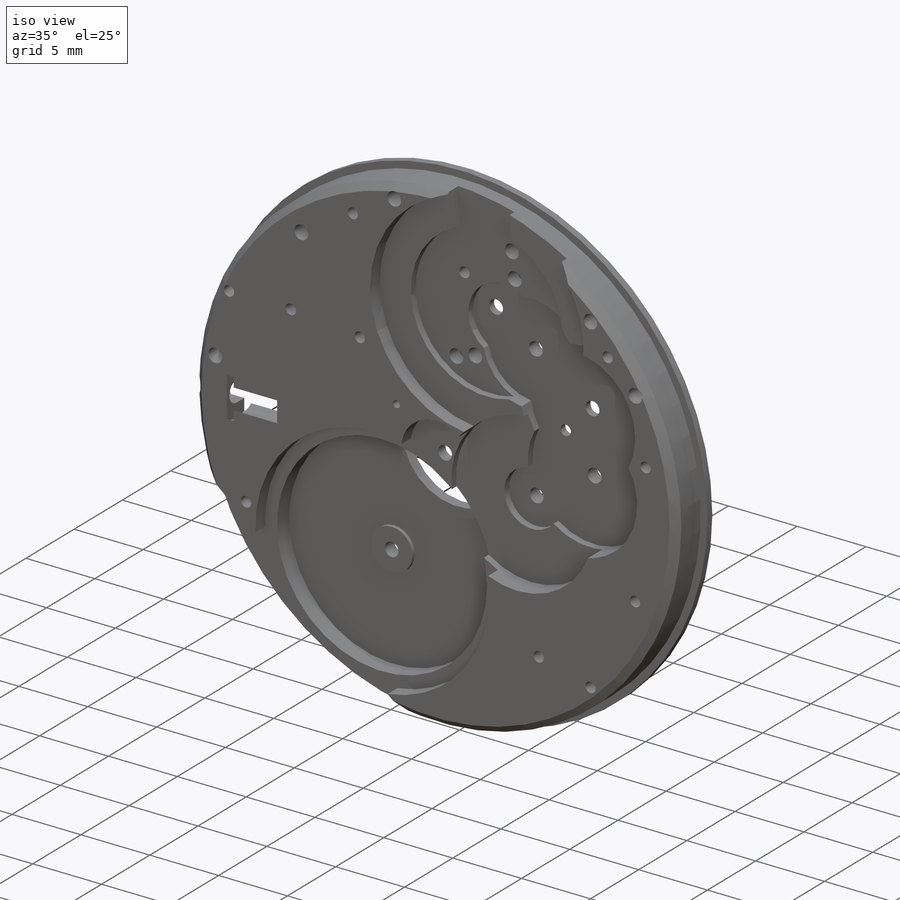
[diagram: iso view]
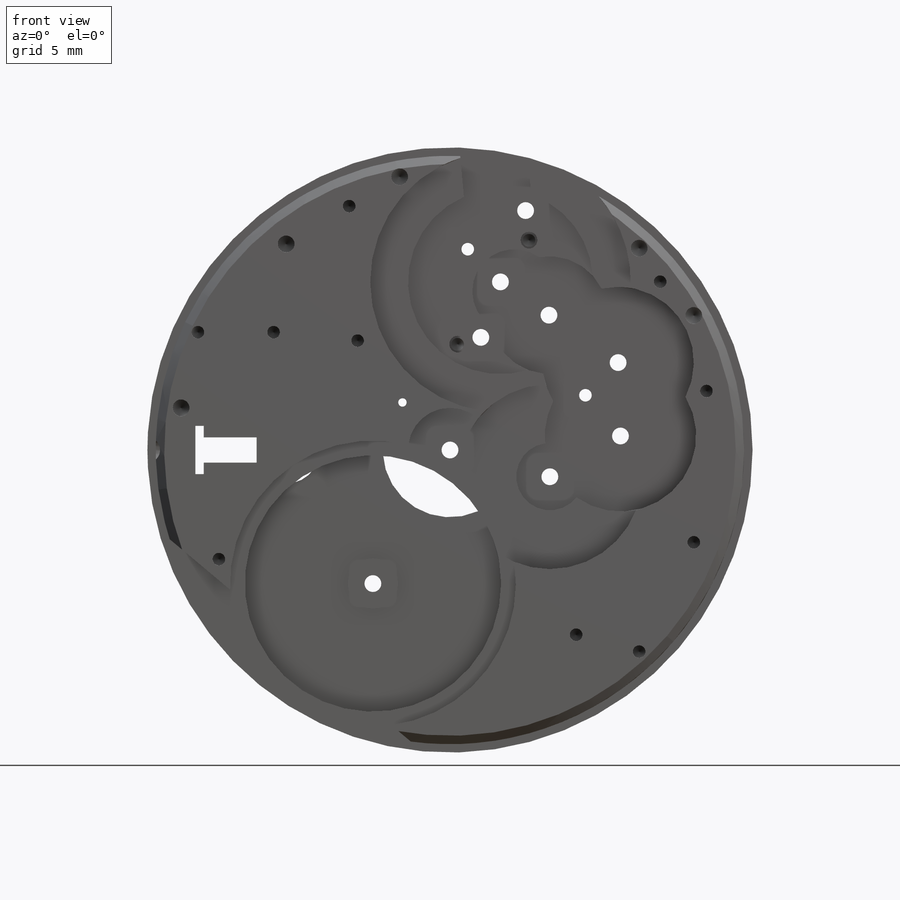
[diagram: front view]
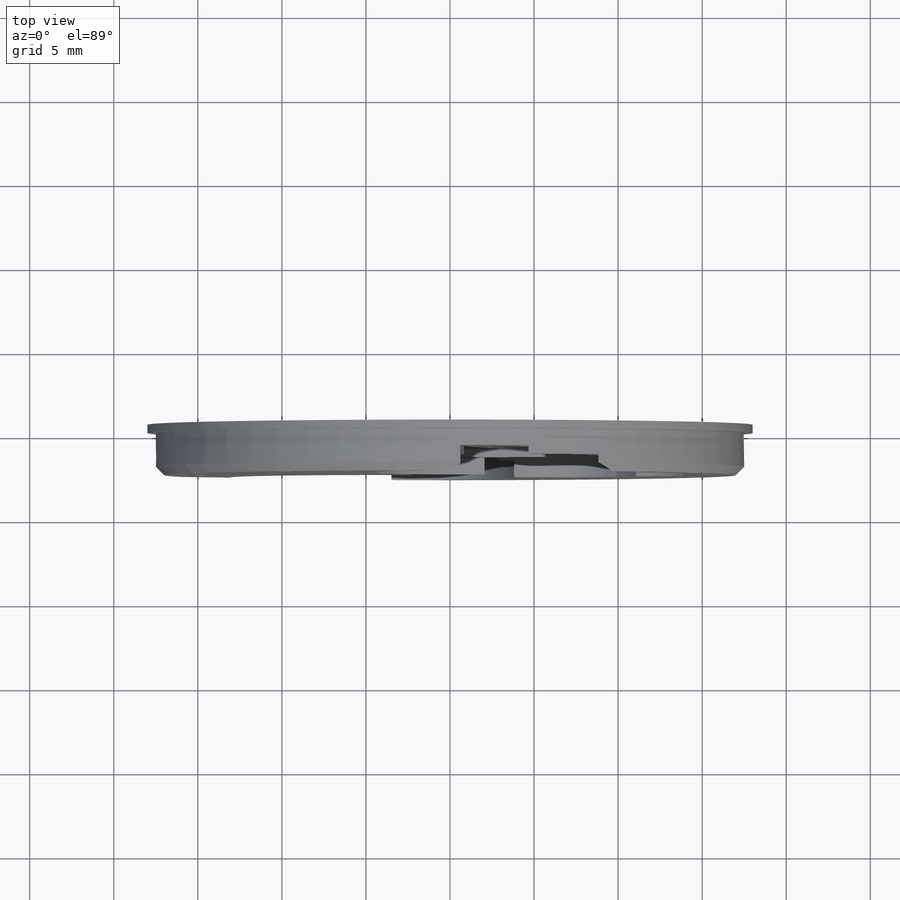
[diagram: top view]
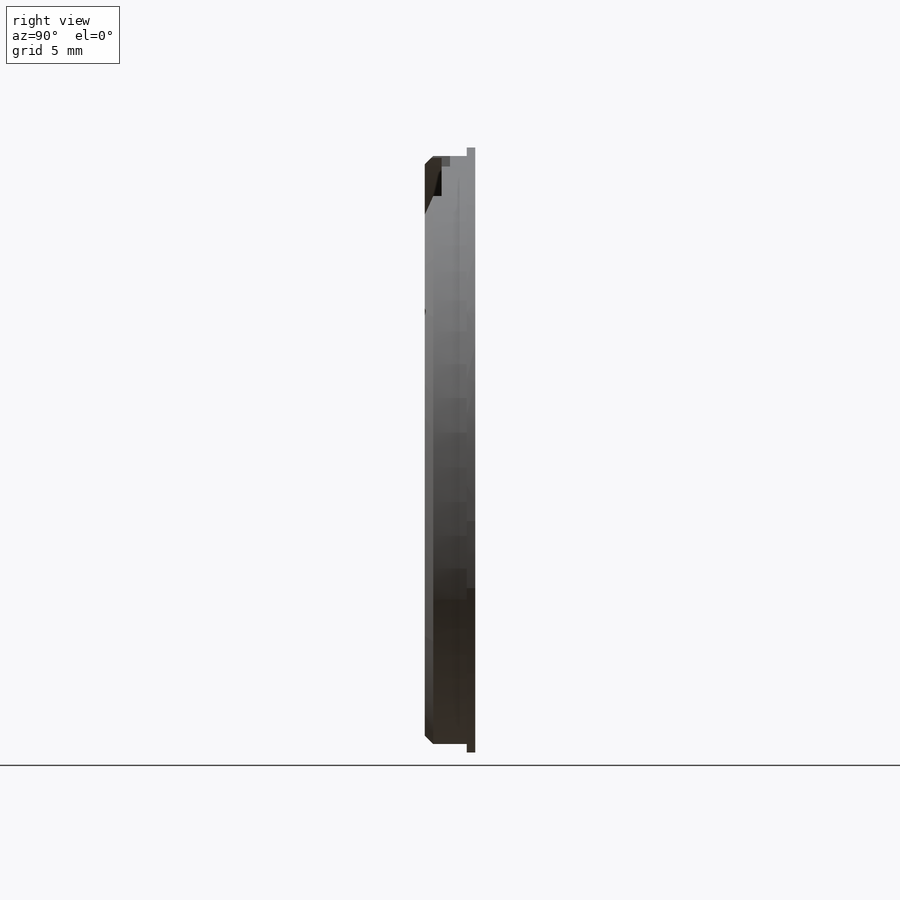
[diagram: right view]
SOLIDWORKS PART (.sldprt)
format: sldprt  version: not decoded by parser v0  size: 1,274,880 bytes
history: native  units: mm
features: sketch x42, cut_extrude x18, thread x14, hole x9, extrude x6, plane x4, chamfer x2, material x1 (+8 scaffold rows collapsed)
feature tree (104):
  scaffold x8  (default folders/planes/origin — collapsed)
  material  "Material <sin especificar>"
  plane  "Alzado"
  plane  "Planta"
  plane  "Vista lateral"
  sketch  "Croquis1"  dims[D1=35.0mm]
  extrude  "Saliente-Extruir1"  Depth=2.5mm
  sketch  "Croquis2"  dims[D1=36.0mm]
  extrude  "Saliente-Extruir2"  Depth=0.5mm
  chamfer  "Chaflán1"  Distance=0.5mm Angle=45deg
  sketch  "Croquis4"  dims[c1.D1=15.25mm c1.D2=9.175mm c1.D3=9.175mm c2.D3=30.0deg]
  cut_extrude  "Cortar-Extruir1"  Depth=2.25mm
  sketch  "Croquis5"  dims[c1.D1=17.0mm c1.D4=5.0mm c1.D5=15.5mm c1.D8=8.75mm c1.D2=135.0deg c2.D2=~23.438852mm c3.D2=40.0deg c3.D3=23.0mm c3.D6=3.0mm c3.D7=10.0mm]
  cut_extrude  "Cortar-Extruir2"  Depth=1mm
  sketch  "Croquis7"  dims[D1=1.0mm]
  cut_extrude  "Cortar-Extruir3"  [1 undecoded]
  sketch  "Croquis8"  dims[c1.D3=11.0mm c1.D4=11.0mm c1.D1=~3.382087mm c2.D1=15.0deg c2.D2=6.15mm]
  sketch  "Croquis9"  dims[D1=3.0mm]
  extrude  "Saliente-Extruir3"  Depth=0.25mm
  sketch  "Croquis10"  dims[D1=1.0mm]
  cut_extrude  "Cortar-Extruir4"  [1 undecoded]
  cut_extrude  "Cortar-Extruir5"  Depth=0.5mm
  sketch  "Croquis12"  dims[c1.D1=4.0mm c1.D4=9.0mm c1.D5=1.0mm c1.D6=1.0mm c1.D7=9.0mm c1.D10=5.0mm c1.D11=7.0mm c1.D12=4.0mm c1.D2=4.85mm c1.D3=4.85mm c2.D3=30.0deg c2.D5=5.2mm c2.D6=10.0mm c2.D8=1.0mm c2.D9=3.5mm c2.D12=~8.487638mm]
  cut_extrude  "Cortar-Extruir6"  Depth=0.5mm
  sketch  "Croquis13"  dims[c1.D1=~9.189814mm c2.D1=~1.521203deg c3.D1=4.0mm c3.D2=~4.722928mm c4.D2=95.0deg c4.D3=9.0mm c4.D4=7.0mm]
  cut_extrude  "Cortar-Extruir7"  Depth=0.5mm
  sketch  "Croquis14"  dims[D1=1.0mm]
  cut_extrude  "Cortar-Extruir8"  [1 undecoded]
  hole  "Diámetro de taladro Ø1.0 (1)1"  Depth=1.25mm  [1 undecoded]
  sketch  "Croquis16"  dims[c1.D1=~14.626586mm c1.D2=3.0mm c2.D1=9.75mm c2.D3=16.25mm c2.D4=12.25mm c2.D5=2.5mm c2.D6=16.0mm c2.D7=12.0mm c2.D8=11.25mm c2.D9=8.0mm c2.D10=14.5mm]
  sketch  "Croquis15"  dims[hole-wizard template sketch: 46 standard entries collapsed; hole parameters kept: c15.Diámetro de taladro=1.0mm c15.Profundidad de taladro=1.25mm c15.D3=~14.816244mm c15.Ángulo de perforador=118.0deg]
  hole  "Taladro roscado M1x0.251"  Depth=1.5mm  [1 undecoded]
  sketch  "Croquis18"  dims[D1=7.5mm D2=11.0mm D3=13.75mm D4=6.5mm D5=7.0mm D6=10.5mm D7=14.5mm D8=5.5mm D9=15.25mm D10=3.5mm D11=6.5mm D12=5.5mm D13=6.0mm D14=14.5mm D15=10.0mm D16=12.5mm D17=15.0mm D18=7.0mm D19=12.0mm D20=11.25mm]
  sketch  "Croquis17"  dims[hole-wizard template sketch: 46 standard entries collapsed; hole parameters kept: c15.Diámetro de perforador para roscar=0.75mm c15.Profundidad de perforador para roscar=1.5mm c15.D3=~14.816244mm c15.Ángulo de perforador=118.0deg]
  thread  "Rosca de taladro1"  Diameter=1.25mm  [1 undecoded]
  thread  "Rosca de taladro2"  Diameter=1.25mm  [1 undecoded]
  thread  "Rosca de taladro3"  Diameter=1.25mm  [1 undecoded]
  thread  "Rosca de taladro4"  Diameter=1.25mm  [1 undecoded]
  thread  "Rosca de taladro5"  Diameter=1.25mm  [1 undecoded]
  thread  "Rosca de taladro6"  Diameter=1.25mm  [1 undecoded]
  thread  "Rosca de taladro7"  Diameter=1.25mm  [1 undecoded]
  thread  "Rosca de taladro8"  Diameter=1.25mm  [1 undecoded]
  sketch  "Croquis19"  dims[c1.D2=1.0mm c1.D3=1.0mm c1.D1=8.5mm c1.D4=~6.263284mm c2.D4=45.0deg c2.D5=4.25mm c3.D4=8.5mm c4.D4=90.0deg c4.D1=~2.403496mm c5.D1=120.0deg c5.D4=3.5mm c5.D5=4.5mm c6.D1=~4.174198mm c7.D1=30.0deg c8.D1=~3.489501mm c9.D1=75.0deg]
  cut_extrude  "Cortar-Extruir9"  [1 undecoded]
  sketch  "Croquis20"  dims[c1.D1=2.5mm c1.D2=6.5mm c1.D3=~3.008651mm c2.D3=45.0deg c2.D4=4.0mm]
  cut_extrude  "Cortar-Extruir10"  Depth=1.25mm
  sketch  "Croquis21"  dims[D1=8.0mm]
  cut_extrude  "Cortar-Extruir11"  Depth=0.75mm
  sketch  "Croquis22"  dims[D1=0.5mm]
  cut_extrude  "Cortar-Extruir12"  [1 undecoded]
  hole  "Taladro roscado M1x0.252"  Depth=1.5mm  [1 undecoded]
  sketch  "Croquis24"  dims[D1=3.5mm D2=15.25mm D3=15.0mm D4=7.0mm]
  sketch  "Croquis23"  dims[hole-wizard template sketch: 46 standard entries collapsed; hole parameters kept: c15.Diámetro de perforador para roscar=0.75mm c15.Profundidad de perforador para roscar=1.5mm c15.D3=~14.816244mm c15.Ángulo de perforador=118.0deg]
  thread  "Rosca de taladro9"  Diameter=1.25mm  [1 undecoded]
  thread  "Rosca de taladro10"  Diameter=1.25mm  [1 undecoded]
  hole  "Diámetro de taladro Ø1.0 (1)2"  Depth=2mm  [1 undecoded]
  sketch  "Croquis27"  dims[c1.D1=28.0mm c1.D2=28.0mm c2.D2=45.0deg]
  sketch  "Croquis26"  dims[hole-wizard template sketch: 46 standard entries collapsed; hole parameters kept: c15.Diámetro de taladro=1.0mm c15.Profundidad de taladro=2.0mm c15.D3=~14.816244mm c15.Ángulo de perforador=118.0deg]
  chamfer  "Chaflán2"  Distance=0.25mm Angle=45deg
  hole  "Taladro roscado M1x0.253"  Depth=1.25mm  [1 undecoded]
  sketch  "Croquis29"  dims[D1=4.5mm D2=3.0mm]
  sketch  "Croquis28"  dims[hole-wizard template sketch: 28 standard entries collapsed; hole parameters kept: c8.Diámetro de perforador para roscar=0.75mm c8.Profundidad de perforador para roscar=1.25mm c8.Diámetro mayor de rosca=1.0mm c8.Profundidad de rosca=1.0mm c8.D5=~14.816244mm c8.Ángulo de perforador=118.0deg]
  plane  "Plano1"
  sketch  "Croquis30"  dims[D2=1.5mm D1=2.0mm]
  cut_extrude  "Cortar-Extruir13"  Depth=2.35mm
  sketch  "Croquis31"  dims[D1=3.5mm]
  cut_extrude  "Cortar-Extruir14"  Depth=0.5mm
  sketch  "Croquis32"  dims[c1.D1=5.75mm c1.D3=3.0mm c1.D4=2.5mm c1.D5=7.0mm c1.D8=7.0mm c1.D9=6.0mm c1.D14=8.0mm c1.D17=5.0mm c1.D24=2.0mm c2.D8=4.75mm c2.D3=1.5mm c2.D4=1.25mm c2.D25=3.5mm c2.D17=2.0mm c2.D10=2.0mm c3.D3=1.25mm c3.D4=1.25mm c4.D3=1.5mm c4.D4=1.5mm c4.D5=4.0mm c4.D11=3.0mm c4.D2=3.5mm c4.D6=2.5mm c4.D7=9.5mm c4.D10=1.0mm c5.D11=10.5mm c5.D12=1.5mm c5.D13=11.5mm c5.D15=11.5mm c5.D16=4.0mm c5.D18=7.5mm c5.D19=2.5mm c5.D20=2.5mm c5.D21=6.0mm c5.D22=~1.78239mm c6.D22=30.0deg c6.D23=~1.898606mm c7.D23=60.0deg c7.D19=3.5mm c7.D6=7.6mm c7.D7=9.75mm c7.D10=5.5mm c7.D11=1.0mm c7.D12=5.5mm c7.D13=1.25mm c7.D15=3.0mm c7.D16=3.75mm c7.D18=1.5mm c8.D19=1.0mm c8.D20=4.5mm c8.D21=1.5mm c8.D12=3.5mm c8.D15=4.5mm c8.D17=3.5mm c8.D26=~3.709447mm c8.D3=7.6mm c8.D4=5.75mm c8.D11=2.25mm c9.D3=4.25mm c9.D4=2.5mm c9.D17=4.5mm c9.D18=1.5mm c9.D19=1.75mm c9.D20=~0.645691mm c10.D20=135.0deg c10.D5=0.25mm c10.D12=~47.489553deg]
  cut_extrude  "Cortar-Extruir15"  Depth=1.2mm
  sketch  "Croquis33"  dims[D1=2.5mm]
  cut_extrude  "Cortar-Extruir16"  Depth=3.15mm
  hole  "Diámetro de taladro Ø0.2 (0.2)1"  Depth=2mm  [1 undecoded]
  sketch  "Croquis37"
  sketch  "Croquis36"  dims[hole-wizard template sketch: 46 standard entries collapsed; hole parameters kept: c15.Diámetro de taladro=0.2mm c15.Profundidad de taladro=2.0mm c15.D3=~14.816244mm c15.Ángulo de perforador=118.0deg]
  sketch  "Croquis38"  dims[D1=1.5mm D2=1.5mm]
  extrude  "Saliente-Extruir4"  Depth=0.2mm
  sketch  "Croquis41"  dims[D1=1.5mm]
  cut_extrude  "Cortar-Extruir17"  [1 undecoded]
  sketch  "Croquis42"  dims[D1=5.0mm D2=10.5mm]
  extrude  "Saliente-Extruir5"  Depth=0.2mm
  hole  "Taladro roscado M1x0.255"  Depth=1mm  [1 undecoded]
  sketch  "Croquis44"
  sketch  "Croquis43"  dims[hole-wizard template sketch: 46 standard entries collapsed; hole parameters kept: c15.Diámetro de perforador para roscar=0.75mm c15.Profundidad de perforador para roscar=1.0mm c15.D3=~14.816244mm c15.Ángulo de perforador=118.0deg]
  thread  "Rosca de taladro12"  Diameter=0.75mm  [1 undecoded]
  thread  "Rosca de taladro13"  Diameter=0.75mm  [1 undecoded]
  hole  "Diámetro de taladro Ø0.5 (0.5)1"  Depth=1mm  [1 undecoded]
  sketch  "Croquis46"  dims[D1=0.25mm D2=1.5mm]
  sketch  "Croquis45"  dims[hole-wizard template sketch: 46 standard entries collapsed; hole parameters kept: c15.Diámetro de taladro=0.5mm c15.Profundidad de taladro=1.0mm c15.D3=~14.816244mm c15.Ángulo de perforador=118.0deg]
  sketch  "Croquis47"  dims[c1.D1=0.5mm c1.D2=3.5mm c1.D3=4.75mm c1.D4=1.5mm c2.D2=2.25mm c2.D3=1.25mm c3.D2=2.25mm c3.D3=3.75mm]
  extrude  "Saliente-Extruir6"  Depth=0.5mm
  sketch  "Croquis48"  dims[c1.D1=5.0mm c1.D2=5.0mm c1.D3=1.0mm c1.D4=1.0mm c1.D5=1.0mm c1.D6=1.0mm c2.D3=1.0mm c2.D4=1.0mm c3.D3=1.0mm c3.D4=1.0mm c3.D5=1.0mm c3.D6=1.0mm c4.D3=1.0mm c4.D4=1.0mm]
  cut_extrude  "Cortar-Extruir18"  Depth=0.5mm
  hole  "Taladro roscado M1x0.256"  Depth=2.52486mm  [1 undecoded]
  sketch  "Croquis50"  dims[c1.D1=~2.828427mm c2.D1=45.0deg c3.D1=2.75mm c3.D2=~0.856159mm c4.D2=45.0deg c4.D3=2.75mm c4.D4=~0.479504mm c5.D4=45.0deg]
  sketch  "Croquis49"  dims[hole-wizard template sketch: 60 standard entries collapsed; hole parameters kept: c18.Profundidad de perforador para roscar hasta el siguiente=~2.52486mm]
  thread  "Rosca de taladro14"  Diameter=1mm  [1 undecoded]
  thread  "Rosca de taladro15"  Diameter=1mm  [1 undecoded]
decode coverage: 83 of 91 modeling features carry decoded parameters
note: ~ marks probable driven/reference dimensions
note: 29 parameter values undecoded
summary: no parameter record found for 15 features
note: suppression state not decoded; provenance and decode notes live in map.json
